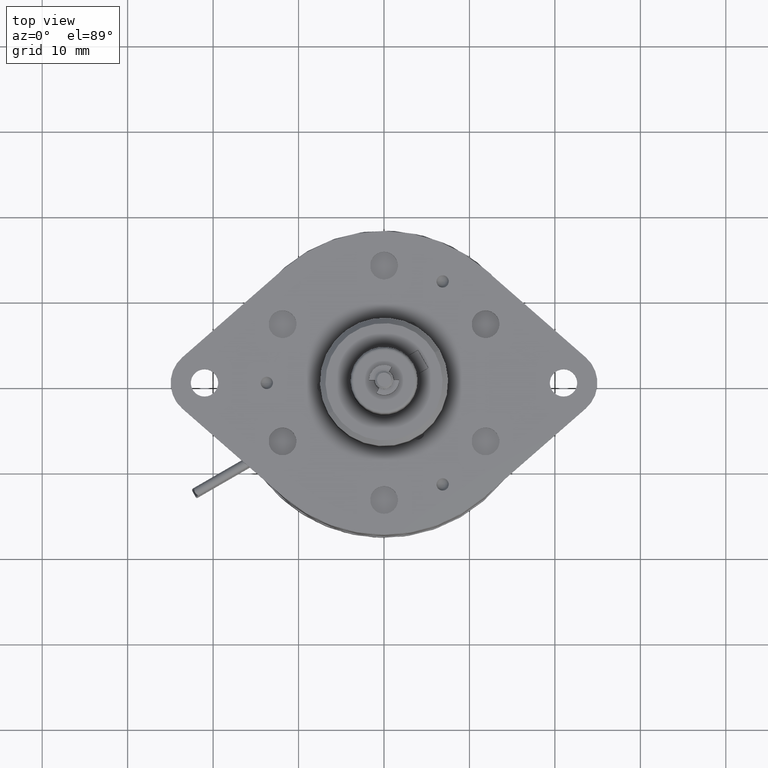
[diagram: clean part render]
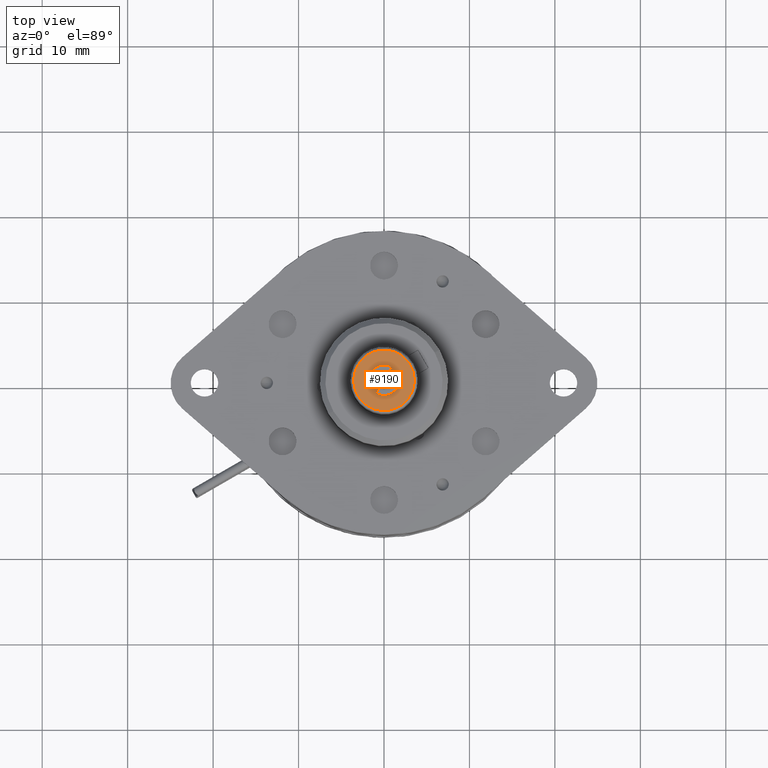
[diagram: same view with one face highlighted and labeled with its STEP entity id]
A machine part, top view. The second image highlights one B-rep face of the part: STEP entity #9190.
In plain terms, the highlighted planar face has unit normal (0, 0, -1).
Its self-contained STEP definition (entity closure, byte-faithful):
#8688=CARTESIAN_POINT('',(0.E0,0.E0,0.E0));
#8689=DIRECTION('',(0.E0,0.E0,-1.E0));
#8690=DIRECTION('',(0.E0,-1.E0,0.E0));
#8691=AXIS2_PLACEMENT_3D('',#8688,#8689,#8690);
#8693=CARTESIAN_POINT('',(0.E0,0.E0,0.E0));
#8694=DIRECTION('',(0.E0,0.E0,-1.E0));
#8695=DIRECTION('',(0.E0,1.E0,0.E0));
#8696=AXIS2_PLACEMENT_3D('',#8693,#8694,#8695);
#8698=DIRECTION('',(-4.694715627859E-1,8.829475928589E-1,0.E0));
#8699=VECTOR('',#8698,2.3E-2);
#8700=CARTESIAN_POINT('',(-2.206516345094E-2,4.149853686437E-2,0.E0));
#8701=LINE('',#8700,#8699);
#8702=CARTESIAN_POINT('',(0.E0,0.E0,0.E0));
#8703=DIRECTION('',(0.E0,0.E0,1.E0));
#8704=DIRECTION('',(-4.694715627859E-1,8.829475928589E-1,0.E0));
#8705=AXIS2_PLACEMENT_3D('',#8702,#8703,#8704);
#8707=CARTESIAN_POINT('',(0.E0,0.E0,0.E0));
#8708=DIRECTION('',(0.E0,0.E0,1.E0));
#8709=DIRECTION('',(-1.E0,0.E0,0.E0));
#8710=AXIS2_PLACEMENT_3D('',#8707,#8708,#8709);
#8712=DIRECTION('',(4.694715627859E-1,8.829475928589E-1,0.E0));
#8713=VECTOR('',#8712,2.3E-2);
#8714=CARTESIAN_POINT('',(-3.286300939501E-2,-6.180633150012E-2,0.E0));
#8715=LINE('',#8714,#8713);
#8716=CARTESIAN_POINT('',(0.E0,0.E0,0.E0));
#8717=DIRECTION('',(0.E0,0.E0,1.E0));
#8718=DIRECTION('',(-4.694715627859E-1,-8.829475928589E-1,0.E0));
#8719=AXIS2_PLACEMENT_3D('',#8716,#8717,#8718);
#8721=CARTESIAN_POINT('',(0.E0,0.E0,0.E0));
#8722=DIRECTION('',(0.E0,0.E0,1.E0));
#8723=DIRECTION('',(0.E0,-1.E0,0.E0));
#8724=AXIS2_PLACEMENT_3D('',#8721,#8722,#8723);
#8726=DIRECTION('',(4.694715627859E-1,-8.829475928589E-1,0.E0));
#8727=VECTOR('',#8726,2.3E-2);
#8728=CARTESIAN_POINT('',(2.206516345094E-2,-4.149853686437E-2,0.E0));
#8729=LINE('',#8728,#8727);
#8730=CARTESIAN_POINT('',(0.E0,0.E0,0.E0));
#8731=DIRECTION('',(0.E0,0.E0,1.E0));
#8732=DIRECTION('',(4.694715627859E-1,-8.829475928589E-1,0.E0));
#8733=AXIS2_PLACEMENT_3D('',#8730,#8731,#8732);
#8735=CARTESIAN_POINT('',(0.E0,0.E0,0.E0));
#8736=DIRECTION('',(0.E0,0.E0,1.E0));
#8737=DIRECTION('',(1.E0,0.E0,0.E0));
#8738=AXIS2_PLACEMENT_3D('',#8735,#8736,#8737);
#8740=DIRECTION('',(-4.694715627859E-1,-8.829475928589E-1,0.E0));
#8741=VECTOR('',#8740,2.3E-2);
#8742=CARTESIAN_POINT('',(3.286300939501E-2,6.180633150012E-2,0.E0));
#8743=LINE('',#8742,#8741);
#8744=CARTESIAN_POINT('',(0.E0,0.E0,0.E0));
#8745=DIRECTION('',(0.E0,0.E0,1.E0));
#8746=DIRECTION('',(4.694715627859E-1,8.829475928589E-1,0.E0));
#8747=AXIS2_PLACEMENT_3D('',#8744,#8745,#8746);
#8749=CARTESIAN_POINT('',(0.E0,0.E0,0.E0));
#8750=DIRECTION('',(0.E0,0.E0,1.E0));
#8751=DIRECTION('',(0.E0,1.E0,0.E0));
#8752=AXIS2_PLACEMENT_3D('',#8749,#8750,#8751);
#8796=CARTESIAN_POINT('',(-2.206516345094E-2,4.149853686437E-2,0.E0));
#8797=VERTEX_POINT('',#8796);
#8798=CARTESIAN_POINT('',(0.E0,4.7E-2,0.E0));
#8799=VERTEX_POINT('',#8798);
#8800=CARTESIAN_POINT('',(2.206516345094E-2,4.149853686437E-2,0.E0));
#8801=VERTEX_POINT('',#8800);
#8802=CARTESIAN_POINT('',(0.E0,-4.7E-2,0.E0));
#8803=CARTESIAN_POINT('',(2.206516345094E-2,-4.149853686437E-2,0.E0));
#8804=VERTEX_POINT('',#8802);
#8805=VERTEX_POINT('',#8803);
#8806=CARTESIAN_POINT('',(-2.206516345094E-2,-4.149853686437E-2,0.E0));
#8807=VERTEX_POINT('',#8806);
#8870=CARTESIAN_POINT('',(0.E0,1.395E-1,0.E0));
#8871=VERTEX_POINT('',#8870);
#8872=CARTESIAN_POINT('',(0.E0,-1.395E-1,0.E0));
#8873=VERTEX_POINT('',#8872);
#8874=CARTESIAN_POINT('',(-3.286300939501E-2,6.180633150012E-2,0.E0));
#8875=VERTEX_POINT('',#8874);
#8876=CARTESIAN_POINT('',(-7.E-2,0.E0,0.E0));
#8877=VERTEX_POINT('',#8876);
#8878=CARTESIAN_POINT('',(-3.286300939501E-2,-6.180633150012E-2,0.E0));
#8879=VERTEX_POINT('',#8878);
#8880=CARTESIAN_POINT('',(3.286300939501E-2,-6.180633150012E-2,0.E0));
#8881=VERTEX_POINT('',#8880);
#8882=CARTESIAN_POINT('',(7.E-2,0.E0,0.E0));
#8883=VERTEX_POINT('',#8882);
#8884=CARTESIAN_POINT('',(3.286300939501E-2,6.180633150012E-2,0.E0));
#8885=VERTEX_POINT('',#8884);
#9157=CARTESIAN_POINT('',(0.E0,0.E0,0.E0));
#9158=DIRECTION('',(0.E0,0.E0,-1.E0));
#9159=DIRECTION('',(0.E0,-1.E0,0.E0));
#9160=AXIS2_PLACEMENT_3D('',#9157,#9158,#9159);
#9161=PLANE('',#9160);
#9162=ORIENTED_EDGE('',*,*,#9136,.T.);
#9163=ORIENTED_EDGE('',*,*,#9152,.T.);
#9164=EDGE_LOOP('',(#9162,#9163));
#9165=FACE_OUTER_BOUND('',#9164,.F.);
#9167=ORIENTED_EDGE('',*,*,#9166,.T.);
#9169=ORIENTED_EDGE('',*,*,#9168,.T.);
#9171=ORIENTED_EDGE('',*,*,#9170,.T.);
#9173=ORIENTED_EDGE('',*,*,#9172,.T.);
#9175=ORIENTED_EDGE('',*,*,#9174,.T.);
#9177=ORIENTED_EDGE('',*,*,#9176,.T.);
#9179=ORIENTED_EDGE('',*,*,#9178,.T.);
#9181=ORIENTED_EDGE('',*,*,#9180,.T.);
#9183=ORIENTED_EDGE('',*,*,#9182,.T.);
#9185=ORIENTED_EDGE('',*,*,#9184,.T.);
#9186=ORIENTED_EDGE('',*,*,#8899,.T.);
#9187=ORIENTED_EDGE('',*,*,#8897,.T.);
#9188=EDGE_LOOP('',(#9167,#9169,#9171,#9173,#9175,#9177,#9179,#9181,#9183,#9185,
#9186,#9187));
#9189=FACE_BOUND('',#9188,.F.);
#9190=ADVANCED_FACE('',(#9165,#9189),#9161,.F.);
#8692=CIRCLE('',#8691,1.395E-1);
#8697=CIRCLE('',#8696,1.395E-1);
#8706=CIRCLE('',#8705,7.E-2);
#8711=CIRCLE('',#8710,7.E-2);
#8720=CIRCLE('',#8719,4.7E-2);
#8725=CIRCLE('',#8724,4.7E-2);
#8734=CIRCLE('',#8733,7.E-2);
#8739=CIRCLE('',#8738,7.E-2);
#8748=CIRCLE('',#8747,4.7E-2);
#8753=CIRCLE('',#8752,4.7E-2);
#8897=EDGE_CURVE('',#8799,#8797,#8753,.T.);
#8899=EDGE_CURVE('',#8801,#8799,#8748,.T.);
#9136=EDGE_CURVE('',#8873,#8871,#8692,.T.);
#9152=EDGE_CURVE('',#8871,#8873,#8697,.T.);
#9166=EDGE_CURVE('',#8797,#8875,#8701,.T.);
#9168=EDGE_CURVE('',#8875,#8877,#8706,.T.);
#9170=EDGE_CURVE('',#8877,#8879,#8711,.T.);
#9172=EDGE_CURVE('',#8879,#8807,#8715,.T.);
#9174=EDGE_CURVE('',#8807,#8804,#8720,.T.);
#9176=EDGE_CURVE('',#8804,#8805,#8725,.T.);
#9178=EDGE_CURVE('',#8805,#8881,#8729,.T.);
#9180=EDGE_CURVE('',#8881,#8883,#8734,.T.);
#9182=EDGE_CURVE('',#8883,#8885,#8739,.T.);
#9184=EDGE_CURVE('',#8885,#8801,#8743,.T.);